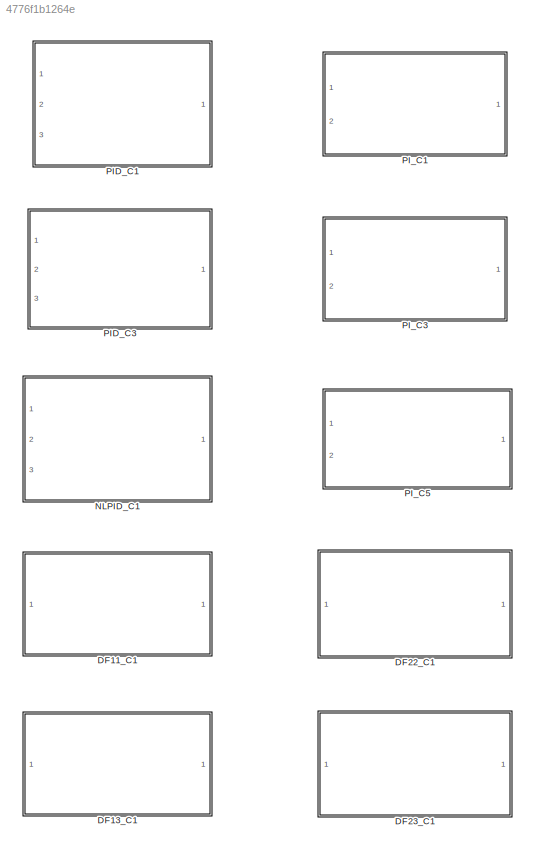
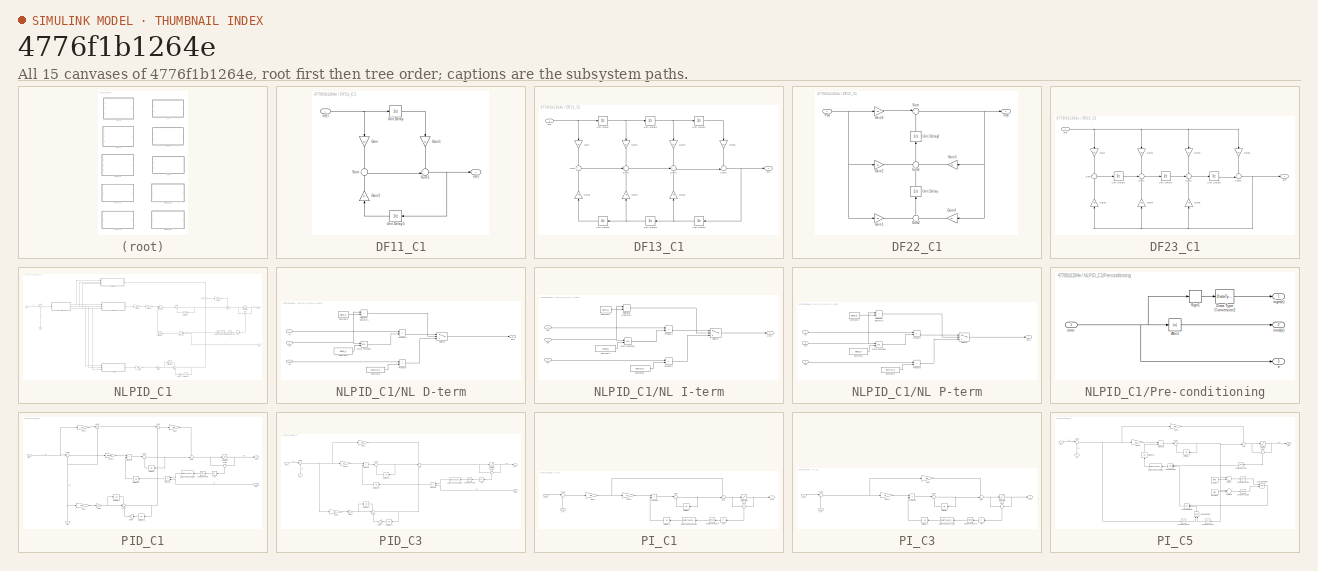
[diagram: thumbnail index - all 15 canvases of the model, root first then tree order]
MODEL slx_4776f1b1264e
KIND library
CONFIG AbsTol = auto
CONFIG EnableMultiTasking = off
CONFIG FixedStep = auto
CONFIG MaxStep = auto
CONFIG MinStep = auto
CONFIG RelTol = 1e-3
CONFIG SampleTimeConstraint = Unconstrained
CONFIG Solver = VariableStepAuto
CONFIG SolverName = VariableStepAuto
CONFIG StartTime = 0.0
CONFIG StopTime = 10.0
BLOCK [SubSystem] DF11_C1
  Ports = [1, 1]
  RequestExecContextInheritance = off
  ShowPortLabels = SignalName
  SystemSampleTime = T
  TreatAsAtomicUnit = on
  Variant = off
BLOCK [Gain] DF11_C1/Gain
  Gain = b0
  OutDataTypeStr = Inherit: Inherit via internal rule
  ParamDataTypeStr = Inherit: Inherit via internal rule
  SaturateOnIntegerOverflow = off
BLOCK [Gain] DF11_C1/Gain1
  Gain = b1
  OutDataTypeStr = Inherit: Inherit via internal rule
  ParamDataTypeStr = Inherit: Inherit via internal rule
  SaturateOnIntegerOverflow = off
BLOCK [Gain] DF11_C1/Gain2
  Gain = a1
  OutDataTypeStr = Inherit: Inherit via internal rule
  ParamDataTypeStr = Inherit: Inherit via internal rule
  SaturateOnIntegerOverflow = off
BLOCK [Sum] DF11_C1/Sum
  IconShape = round
  InputSameDT = off
  Inputs = +|-
  OutDataTypeStr = Inherit: Inherit via internal rule
  Ports = [2, 1]
  SaturateOnIntegerOverflow = off
BLOCK [Sum] DF11_C1/Sum1
  IconShape = round
  InputSameDT = off
  Inputs = ++|
  OutDataTypeStr = Inherit: Inherit via internal rule
  Ports = [2, 1]
  SaturateOnIntegerOverflow = off
BLOCK [UnitDelay] DF11_C1/Unit Delay
  InputProcessing = Elements as channels (sample based)
  SampleTime = -1
BLOCK [UnitDelay] DF11_C1/Unit Delay5
  InputProcessing = Elements as channels (sample based)
  SampleTime = -1
BLOCK [Inport] DF11_C1/e(k)
  IconDisplay = Port number
BLOCK [Outport] DF11_C1/u(k)
  IconDisplay = Port number
BLOCK [SubSystem] DF13_C1
  Ports = [1, 1]
  RequestExecContextInheritance = off
  TreatAsAtomicUnit = on
  Variant = off
BLOCK [Gain] DF13_C1/Gain
  Gain = b0
  OutDataTypeStr = Inherit: Inherit via internal rule
  ParamDataTypeStr = Inherit: Inherit via internal rule
  SaturateOnIntegerOverflow = off
BLOCK [Gain] DF13_C1/Gain1
  Gain = b1
  OutDataTypeStr = Inherit: Inherit via internal rule
  ParamDataTypeStr = Inherit: Inherit via internal rule
  SaturateOnIntegerOverflow = off
BLOCK [Gain] DF13_C1/Gain2
  Gain = b2
  OutDataTypeStr = Inherit: Inherit via internal rule
  ParamDataTypeStr = Inherit: Inherit via internal rule
  SaturateOnIntegerOverflow = off
BLOCK [Gain] DF13_C1/Gain3
  Gain = -a3
  OutDataTypeStr = Inherit: Inherit via internal rule
  ParamDataTypeStr = Inherit: Inherit via internal rule
  SaturateOnIntegerOverflow = off
BLOCK [Gain] DF13_C1/Gain4
  Gain = -a2
  OutDataTypeStr = Inherit: Inherit via internal rule
  ParamDataTypeStr = Inherit: Inherit via internal rule
  SaturateOnIntegerOverflow = off
BLOCK [Gain] DF13_C1/Gain5
  Gain = -a1
  OutDataTypeStr = Inherit: Inherit via internal rule
  ParamDataTypeStr = Inherit: Inherit via internal rule
  SaturateOnIntegerOverflow = off
BLOCK [Gain] DF13_C1/Gain6
  Gain = b3
  OutDataTypeStr = Inherit: Inherit via internal rule
  ParamDataTypeStr = Inherit: Inherit via internal rule
  SaturateOnIntegerOverflow = off
BLOCK [Sum] DF13_C1/Sum
  IconShape = round
  InputSameDT = off
  Inputs = +|+
  OutDataTypeStr = Inherit: Inherit via internal rule
  Ports = [2, 1]
  SaturateOnIntegerOverflow = off
BLOCK [Sum] DF13_C1/Sum1
  IconShape = round
  InputSameDT = off
  Inputs = +++
  OutDataTypeStr = Inherit: Inherit via internal rule
  Ports = [3, 1]
  SaturateOnIntegerOverflow = off
BLOCK [Sum] DF13_C1/Sum2
  IconShape = round
  InputSameDT = off
  Inputs = +++
  OutDataTypeStr = Inherit: Inherit via internal rule
  Ports = [3, 1]
  SaturateOnIntegerOverflow = off
BLOCK [Sum] DF13_C1/Sum3
  IconShape = round
  InputSameDT = off
  Inputs = ++|
  OutDataTypeStr = Inherit: Inherit via internal rule
  Ports = [2, 1]
  SaturateOnIntegerOverflow = off
BLOCK [UnitDelay] DF13_C1/Unit Delay
  InputProcessing = Elements as channels (sample based)
  SampleTime = -1
BLOCK [UnitDelay] DF13_C1/Unit Delay1
  InputProcessing = Elements as channels (sample based)
  SampleTime = -1
BLOCK [UnitDelay] DF13_C1/Unit Delay2
  InputProcessing = Elements as channels (sample based)
  SampleTime = -1
BLOCK [UnitDelay] DF13_C1/Unit Delay3
  InputProcessing = Elements as channels (sample based)
  SampleTime = -1
BLOCK [UnitDelay] DF13_C1/Unit Delay4
  InputProcessing = Elements as channels (sample based)
  SampleTime = -1
BLOCK [UnitDelay] DF13_C1/Unit Delay5
  InputProcessing = Elements as channels (sample based)
  SampleTime = -1
BLOCK [Inport] DF13_C1/e(k)
  IconDisplay = Port number
BLOCK [Outport] DF13_C1/u(k) 
  IconDisplay = Port number
BLOCK [SubSystem] DF22_C1
  Ports = [1, 1]
  RequestExecContextInheritance = off
  ShowPortLabels = SignalName
  SystemSampleTime = T
  TreatAsAtomicUnit = on
  Variant = off
BLOCK [Gain] DF22_C1/Gain1
  Gain = b2
  OutDataTypeStr = Inherit: Inherit via internal rule
  ParamDataTypeStr = Inherit: Inherit via internal rule
  SaturateOnIntegerOverflow = off
BLOCK [Gain] DF22_C1/Gain2
  Gain = b1
  OutDataTypeStr = Inherit: Inherit via internal rule
  ParamDataTypeStr = Inherit: Inherit via internal rule
  SaturateOnIntegerOverflow = off
BLOCK [Gain] DF22_C1/Gain4
  Gain = a2
  OutDataTypeStr = Inherit: Inherit via internal rule
  ParamDataTypeStr = Inherit: Inherit via internal rule
  SaturateOnIntegerOverflow = off
BLOCK [Gain] DF22_C1/Gain5
  Gain = a1
  OutDataTypeStr = Inherit: Inherit via internal rule
  ParamDataTypeStr = Inherit: Inherit via internal rule
  SaturateOnIntegerOverflow = off
BLOCK [Gain] DF22_C1/Gain6
  Gain = b0
  OutDataTypeStr = Inherit: Inherit via internal rule
  ParamDataTypeStr = Inherit: Inherit via internal rule
  SaturateOnIntegerOverflow = off
BLOCK [Sum] DF22_C1/Sum
  IconShape = round
  InputSameDT = off
  Inputs = |++
  OutDataTypeStr = Inherit: Inherit via internal rule
  Ports = [2, 1]
  SaturateOnIntegerOverflow = off
BLOCK [Sum] DF22_C1/Sum1
  IconShape = round
  InputSameDT = off
  Inputs = ++-
  OutDataTypeStr = Inherit: Inherit via internal rule
  Ports = [3, 1]
  SaturateOnIntegerOverflow = off
BLOCK [Sum] DF22_C1/Sum2
  IconShape = round
  InputSameDT = off
  Inputs = +|-
  OutDataTypeStr = Inherit: Inherit via internal rule
  Ports = [2, 1]
  SaturateOnIntegerOverflow = off
BLOCK [UnitDelay] DF22_C1/Unit Delay
  InputProcessing = Elements as channels (sample based)
  SampleTime = -1
BLOCK [UnitDelay] DF22_C1/Unit Delay2
  InputProcessing = Elements as channels (sample based)
  SampleTime = -1
BLOCK [Inport] DF22_C1/e(k)
  IconDisplay = Port number
BLOCK [Outport] DF22_C1/u(k) 
  IconDisplay = Port number
BLOCK [SubSystem] DF23_C1
  Ports = [1, 1]
  RequestExecContextInheritance = off
  TreatAsAtomicUnit = on
  Variant = off
BLOCK [Gain] DF23_C1/Gain
  Gain = b3
  OutDataTypeStr = Inherit: Inherit via internal rule
  ParamDataTypeStr = Inherit: Inherit via internal rule
  SaturateOnIntegerOverflow = off
BLOCK [Gain] DF23_C1/Gain1
  Gain = b2
  OutDataTypeStr = Inherit: Inherit via internal rule
  ParamDataTypeStr = Inherit: Inherit via internal rule
  SaturateOnIntegerOverflow = off
BLOCK [Gain] DF23_C1/Gain2
  Gain = b1
  OutDataTypeStr = Inherit: Inherit via internal rule
  ParamDataTypeStr = Inherit: Inherit via internal rule
  SaturateOnIntegerOverflow = off
BLOCK [Gain] DF23_C1/Gain3
  Gain = -a3
  OutDataTypeStr = Inherit: Inherit via internal rule
  ParamDataTypeStr = Inherit: Inherit via internal rule
  SaturateOnIntegerOverflow = off
BLOCK [Gain] DF23_C1/Gain4
  Gain = -a2
  OutDataTypeStr = Inherit: Inherit via internal rule
  ParamDataTypeStr = Inherit: Inherit via internal rule
  SaturateOnIntegerOverflow = off
BLOCK [Gain] DF23_C1/Gain5
  Gain = -a1
  OutDataTypeStr = Inherit: Inherit via internal rule
  ParamDataTypeStr = Inherit: Inherit via internal rule
  SaturateOnIntegerOverflow = off
BLOCK [Gain] DF23_C1/Gain6
  Gain = b0
  OutDataTypeStr = Inherit: Inherit via internal rule
  ParamDataTypeStr = Inherit: Inherit via internal rule
  SaturateOnIntegerOverflow = off
BLOCK [Sum] DF23_C1/Sum
  IconShape = round
  InputSameDT = off
  Inputs = +|+
  OutDataTypeStr = Inherit: Inherit via internal rule
  Ports = [2, 1]
  SaturateOnIntegerOverflow = off
BLOCK [Sum] DF23_C1/Sum1
  IconShape = round
  InputSameDT = off
  Inputs = +++
  OutDataTypeStr = Inherit: Inherit via internal rule
  Ports = [3, 1]
  SaturateOnIntegerOverflow = off
BLOCK [Sum] DF23_C1/Sum2
  IconShape = round
  InputSameDT = off
  Inputs = +++
  OutDataTypeStr = Inherit: Inherit via internal rule
  Ports = [3, 1]
  SaturateOnIntegerOverflow = off
BLOCK [Sum] DF23_C1/Sum3
  IconShape = round
  InputSameDT = off
  Inputs = ++|
  OutDataTypeStr = Inherit: Inherit via internal rule
  Ports = [2, 1]
  SaturateOnIntegerOverflow = off
BLOCK [UnitDelay] DF23_C1/Unit Delay6
  InputProcessing = Elements as channels (sample based)
  SampleTime = -1
BLOCK [UnitDelay] DF23_C1/Unit Delay7
  InputProcessing = Elements as channels (sample based)
  SampleTime = -1
BLOCK [UnitDelay] DF23_C1/Unit Delay8
  InputProcessing = Elements as channels (sample based)
  SampleTime = -1
BLOCK [Inport] DF23_C1/e(k)
  IconDisplay = Port number
BLOCK [Outport] DF23_C1/u(k) 
  IconDisplay = Port number
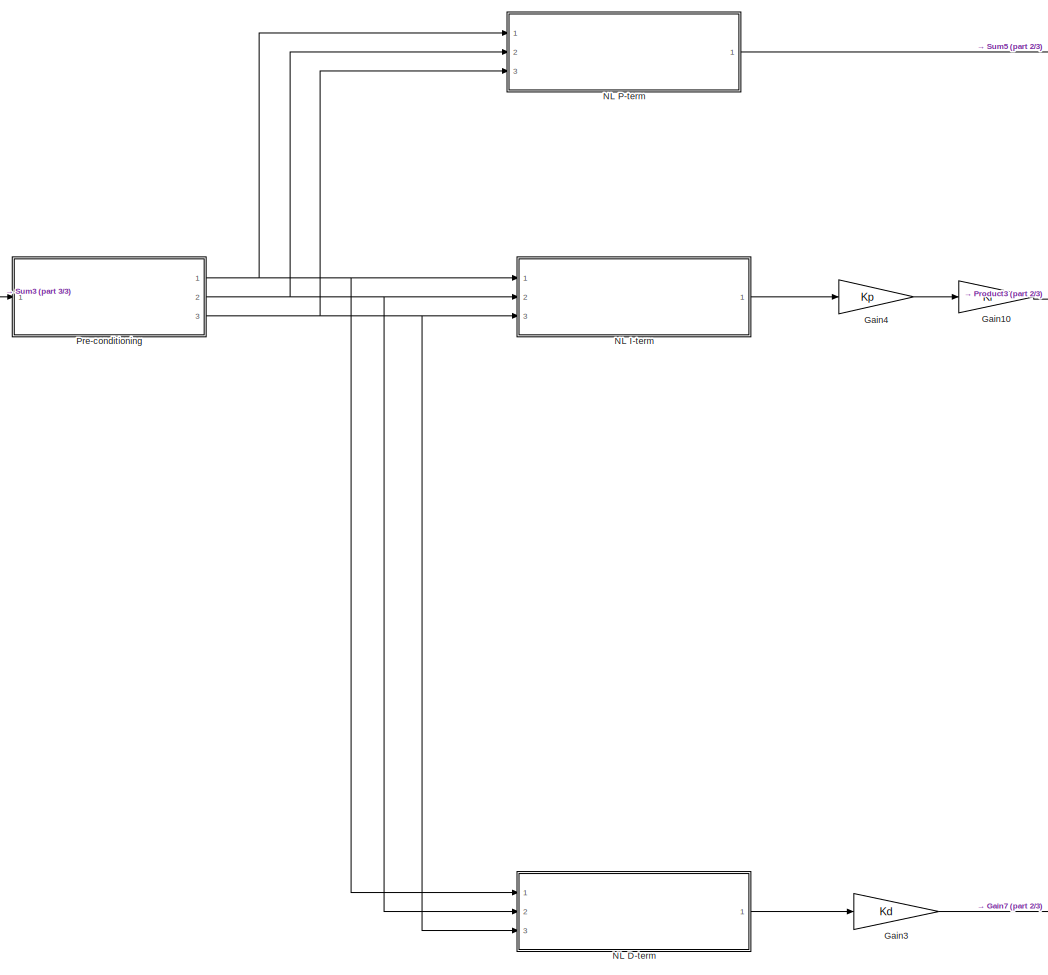
[diagram: NLPID_C1 - part 1/3, left side, full height]
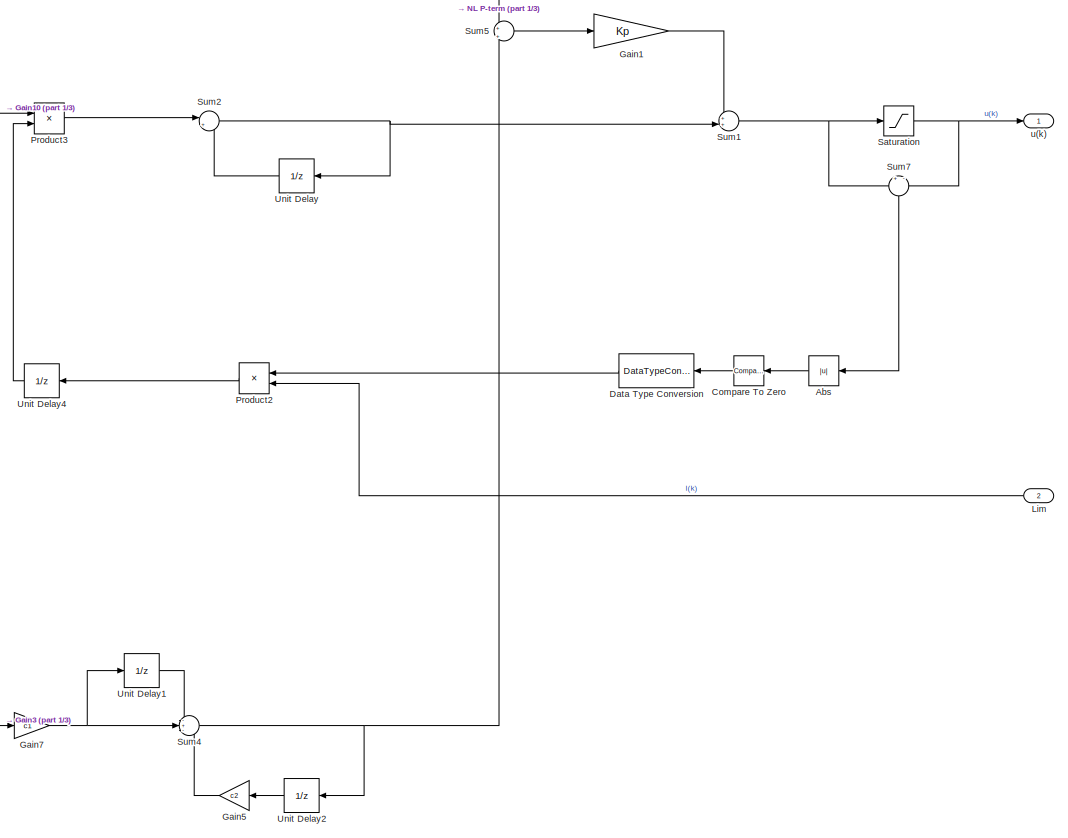
[diagram: NLPID_C1 - part 2/3, right side, full height]
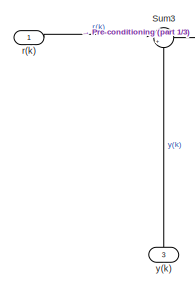
[diagram: NLPID_C1 - part 3/3, middle left region]
BLOCK [SubSystem] NLPID_C1
  Ports = [3, 1]
  RequestExecContextInheritance = off
  SystemSampleTime = T
  TreatAsAtomicUnit = on
  Variant = off
BLOCK [Abs] NLPID_C1/Abs
  SaturateOnIntegerOverflow = off
BLOCK [Reference] NLPID_C1/Compare To Zero  REF=simulink/Logic and Bit
Operations/Compare
To Zero
  Ports = [1, 1]
  SourceBlock = simulink/Logic and Bit\nOperations/Compare\nTo Zero
  SourceProductBaseCode = SL
  SourceProductName = Simulink
  SourceType = Compare To Zero
BLOCK [DataTypeConversion] NLPID_C1/Data Type Conversion
  OutDataTypeStr = single
  RndMeth = Floor
  SaturateOnIntegerOverflow = off
BLOCK [Gain] NLPID_C1/Gain1
  Gain = Kp
  OutDataTypeStr = Inherit: Inherit via internal rule
  ParamDataTypeStr = Inherit: Inherit via internal rule
  SaturateOnIntegerOverflow = off
BLOCK [Gain] NLPID_C1/Gain10
  Gain = Ki
  OutDataTypeStr = Inherit: Inherit via internal rule
  ParamDataTypeStr = Inherit: Inherit via internal rule
  SaturateOnIntegerOverflow = off
BLOCK [Gain] NLPID_C1/Gain3
  Gain = Kd
  OutDataTypeStr = Inherit: Inherit via internal rule
  ParamDataTypeStr = Inherit: Inherit via internal rule
  SaturateOnIntegerOverflow = off
BLOCK [Gain] NLPID_C1/Gain4
  Gain = Kp
  OutDataTypeStr = Inherit: Inherit via internal rule
  ParamDataTypeStr = Inherit: Inherit via internal rule
  SaturateOnIntegerOverflow = off
BLOCK [Gain] NLPID_C1/Gain5
  Gain = c2
  LockScale = on
  OutDataTypeStr = single
  ParamDataTypeStr = single
  SaturateOnIntegerOverflow = off
BLOCK [Gain] NLPID_C1/Gain7
  Gain = c1
  OutDataTypeStr = Inherit: Inherit via internal rule
  ParamDataTypeStr = Inherit: Inherit via internal rule
  SaturateOnIntegerOverflow = off
BLOCK [Inport] NLPID_C1/Lim
  IconDisplay = Signal name
  LockScale = on
  OutDataTypeStr = single
  Port = 2
  SampleTime = T
  SignalType = real
  VarSizeSig = No
BLOCK [SubSystem] NLPID_C1/NL D-term
  Ports = [3, 1]
  RequestExecContextInheritance = off
  Variant = off
BLOCK [Constant] NLPID_C1/NL D-term/Constant1
  OutDataTypeStr = single
  SampleTime = T
  Value = alpha_d
BLOCK [Constant] NLPID_C1/NL D-term/Constant5
  OutDataTypeStr = single
  SampleTime = T
  Value = delta_d
BLOCK [Constant] NLPID_C1/NL D-term/Constant6
  OutDataTypeStr = single
  SampleTime = T
  Value = gamma_d
BLOCK [Inport] NLPID_C1/NL D-term/In1
  IconDisplay = Port number
BLOCK [Inport] NLPID_C1/NL D-term/In2
  IconDisplay = Port number
  Port = 2
BLOCK [Inport] NLPID_C1/NL D-term/In3
  IconDisplay = Port number
  Port = 3
BLOCK [Math] NLPID_C1/NL D-term/Math Function1
  Operator = pow
  OutputSignalType = real
  Ports = [2, 1]
BLOCK [Outport] NLPID_C1/NL D-term/Out1
  IconDisplay = Port number
BLOCK [Product] NLPID_C1/NL D-term/Product1
  InputSameDT = off
  LockScale = on
  OutDataTypeStr = single
  Ports = [2, 1]
  RndMeth = Floor
  SaturateOnIntegerOverflow = off
BLOCK [Product] NLPID_C1/NL D-term/Product5
  InputSameDT = off
  LockScale = on
  OutDataTypeStr = single
  Ports = [2, 1]
  RndMeth = Floor
  SaturateOnIntegerOverflow = off
BLOCK [RelationalOperator] NLPID_C1/NL D-term/Relational Operator1
  Operator = >
  OutDataTypeStr = boolean
  Ports = [2, 1]
BLOCK [Switch] NLPID_C1/NL D-term/Switch1
  Criteria = u2 > Threshold
  InputSameDT = off
  SaturateOnIntegerOverflow = off
BLOCK [SubSystem] NLPID_C1/NL I-term
  Ports = [3, 1]
  RequestExecContextInheritance = off
  Variant = off
BLOCK [Constant] NLPID_C1/NL I-term/Constant1
  LockScale = on
  OutDataTypeStr = single
  SampleTime = T
  Value = alpha_i
BLOCK [Constant] NLPID_C1/NL I-term/Constant5
  LockScale = on
  OutDataTypeStr = single
  SampleTime = T
  Value = delta_i
BLOCK [Constant] NLPID_C1/NL I-term/Constant6
  LockScale = on
  OutDataTypeStr = single
  SampleTime = T
  Value = gamma_i
BLOCK [Inport] NLPID_C1/NL I-term/In1
  IconDisplay = Port number
BLOCK [Inport] NLPID_C1/NL I-term/In2
  IconDisplay = Port number
  Port = 2
BLOCK [Inport] NLPID_C1/NL I-term/In3
  IconDisplay = Port number
  Port = 3
BLOCK [Math] NLPID_C1/NL I-term/Math Function1
  Operator = pow
  OutputSignalType = real
  Ports = [2, 1]
BLOCK [Outport] NLPID_C1/NL I-term/Out1
  IconDisplay = Port number
BLOCK [Product] NLPID_C1/NL I-term/Product1
  LockScale = on
  OutDataTypeStr = single
  Ports = [2, 1]
  RndMeth = Floor
  SaturateOnIntegerOverflow = off
BLOCK [Product] NLPID_C1/NL I-term/Product5
  LockScale = on
  OutDataTypeStr = single
  Ports = [2, 1]
  RndMeth = Floor
  SaturateOnIntegerOverflow = off
BLOCK [RelationalOperator] NLPID_C1/NL I-term/Relational Operator1
  Operator = >
  OutDataTypeStr = boolean
  Ports = [2, 1]
BLOCK [Switch] NLPID_C1/NL I-term/Switch1
  Criteria = u2 > Threshold
  InputSameDT = off
  SaturateOnIntegerOverflow = off
BLOCK [SubSystem] NLPID_C1/NL P-term
  Ports = [3, 1]
  RequestExecContextInheritance = off
  Variant = off
BLOCK [Constant] NLPID_C1/NL P-term/Constant1
  LockScale = on
  OutDataTypeStr = single
  SampleTime = T
  Value = alpha_p
BLOCK [Constant] NLPID_C1/NL P-term/Constant5
  LockScale = on
  OutDataTypeStr = single
  SampleTime = T
  Value = delta_p
BLOCK [Constant] NLPID_C1/NL P-term/Constant6
  LockScale = on
  OutDataTypeStr = single
  SampleTime = T
  Value = gamma_p
BLOCK [Inport] NLPID_C1/NL P-term/In1
  IconDisplay = Port number
BLOCK [Inport] NLPID_C1/NL P-term/In2
  IconDisplay = Port number
  Port = 2
BLOCK [Inport] NLPID_C1/NL P-term/In3
  IconDisplay = Port number
  Port = 3
BLOCK [Math] NLPID_C1/NL P-term/Math Function1
  Operator = pow
  OutputSignalType = real
  Ports = [2, 1]
BLOCK [Outport] NLPID_C1/NL P-term/Out1
  IconDisplay = Port number
  LockScale = on
BLOCK [Product] NLPID_C1/NL P-term/Product1
  LockScale = on
  OutDataTypeStr = single
  Ports = [2, 1]
  RndMeth = Floor
  SaturateOnIntegerOverflow = off
BLOCK [Product] NLPID_C1/NL P-term/Product5
  LockScale = on
  OutDataTypeStr = single
  Ports = [2, 1]
  RndMeth = Floor
  SaturateOnIntegerOverflow = off
BLOCK [RelationalOperator] NLPID_C1/NL P-term/Relational Operator1
  Operator = >
  OutDataTypeStr = boolean
  Ports = [2, 1]
BLOCK [Switch] NLPID_C1/NL P-term/Switch1
  Criteria = u2 > Threshold
  LockScale = on
  OutDataTypeStr = single
  SaturateOnIntegerOverflow = off
BLOCK [SubSystem] NLPID_C1/Pre-conditioning
  Ports = [1, 3]
  RequestExecContextInheritance = off
  Variant = off
BLOCK [Abs] NLPID_C1/Pre-conditioning/Abs1
  OutDataTypeStr = single
  SaturateOnIntegerOverflow = off
BLOCK [DataTypeConversion] NLPID_C1/Pre-conditioning/Data Type Conversion2
  OutDataTypeStr = single
  RndMeth = Floor
  SaturateOnIntegerOverflow = off
BLOCK [Signum] NLPID_C1/Pre-conditioning/Sign1
BLOCK [Outport] NLPID_C1/Pre-conditioning/e
  IconDisplay = Port number
  Port = 3
BLOCK [Inport] NLPID_C1/Pre-conditioning/error
  IconDisplay = Port number
BLOCK [Outport] NLPID_C1/Pre-conditioning/mod(e)
  IconDisplay = Port number
  Port = 2
BLOCK [Outport] NLPID_C1/Pre-conditioning/sign(e)
  IconDisplay = Port number
BLOCK [Product] NLPID_C1/Product2
  InputSameDT = off
  OutDataTypeStr = Inherit: Inherit via internal rule
  Ports = [2, 1]
  SaturateOnIntegerOverflow = off
BLOCK [Product] NLPID_C1/Product3
  InputSameDT = off
  OutDataTypeStr = Inherit: Inherit via internal rule
  Ports = [2, 1]
  SaturateOnIntegerOverflow = off
BLOCK [Saturate] NLPID_C1/Saturation
  InputPortMap = u0
  LowerLimit = Umin
  Ports = [1, 1]
  UpperLimit = Umax
BLOCK [Sum] NLPID_C1/Sum1
  IconShape = round
  InputSameDT = off
  Inputs = ++|
  OutDataTypeStr = Inherit: Inherit via internal rule
  Ports = [2, 1]
  SaturateOnIntegerOverflow = off
BLOCK [Sum] NLPID_C1/Sum2
  IconShape = round
  InputSameDT = off
  Inputs = |++
  OutDataTypeStr = Inherit: Inherit via internal rule
  Ports = [2, 1]
  SaturateOnIntegerOverflow = off
BLOCK [Sum] NLPID_C1/Sum3
  AccumDataTypeStr = single
  IconShape = round
  Inputs = |+-
  LockScale = on
  OutDataTypeStr = single
  Ports = [2, 1]
  SaturateOnIntegerOverflow = off
BLOCK [Sum] NLPID_C1/Sum4
  IconShape = round
  InputSameDT = off
  Inputs = -+-
  OutDataTypeStr = Inherit: Inherit via internal rule
  Ports = [3, 1]
  SaturateOnIntegerOverflow = off
BLOCK [Sum] NLPID_C1/Sum5
  IconShape = round
  InputSameDT = off
  Inputs = +|+
  OutDataTypeStr = Inherit: Inherit via internal rule
  Ports = [2, 1]
  SaturateOnIntegerOverflow = off
BLOCK [Sum] NLPID_C1/Sum7
  IconShape = round
  InputSameDT = off
  Inputs = +|-
  OutDataTypeStr = Inherit: Inherit via internal rule
  Ports = [2, 1]
  SaturateOnIntegerOverflow = off
BLOCK [UnitDelay] NLPID_C1/Unit Delay
  SampleTime = -1
BLOCK [UnitDelay] NLPID_C1/Unit Delay1
  SampleTime = -1
BLOCK [UnitDelay] NLPID_C1/Unit Delay2
  SampleTime = -1
BLOCK [UnitDelay] NLPID_C1/Unit Delay4
  InputProcessing = Elements as channels (sample based)
  SampleTime = -1
BLOCK [Inport] NLPID_C1/r(k)
  IconDisplay = Signal name
  OutDataTypeStr = single
  SampleTime = T
  SignalType = real
  VarSizeSig = No
BLOCK [Outport] NLPID_C1/u(k)
  IconDisplay = Signal name
BLOCK [Inport] NLPID_C1/y(k)
  IconDisplay = Signal name
  LockScale = on
  OutDataTypeStr = single
  Port = 3
  SampleTime = T
  SignalType = real
  VarSizeSig = No
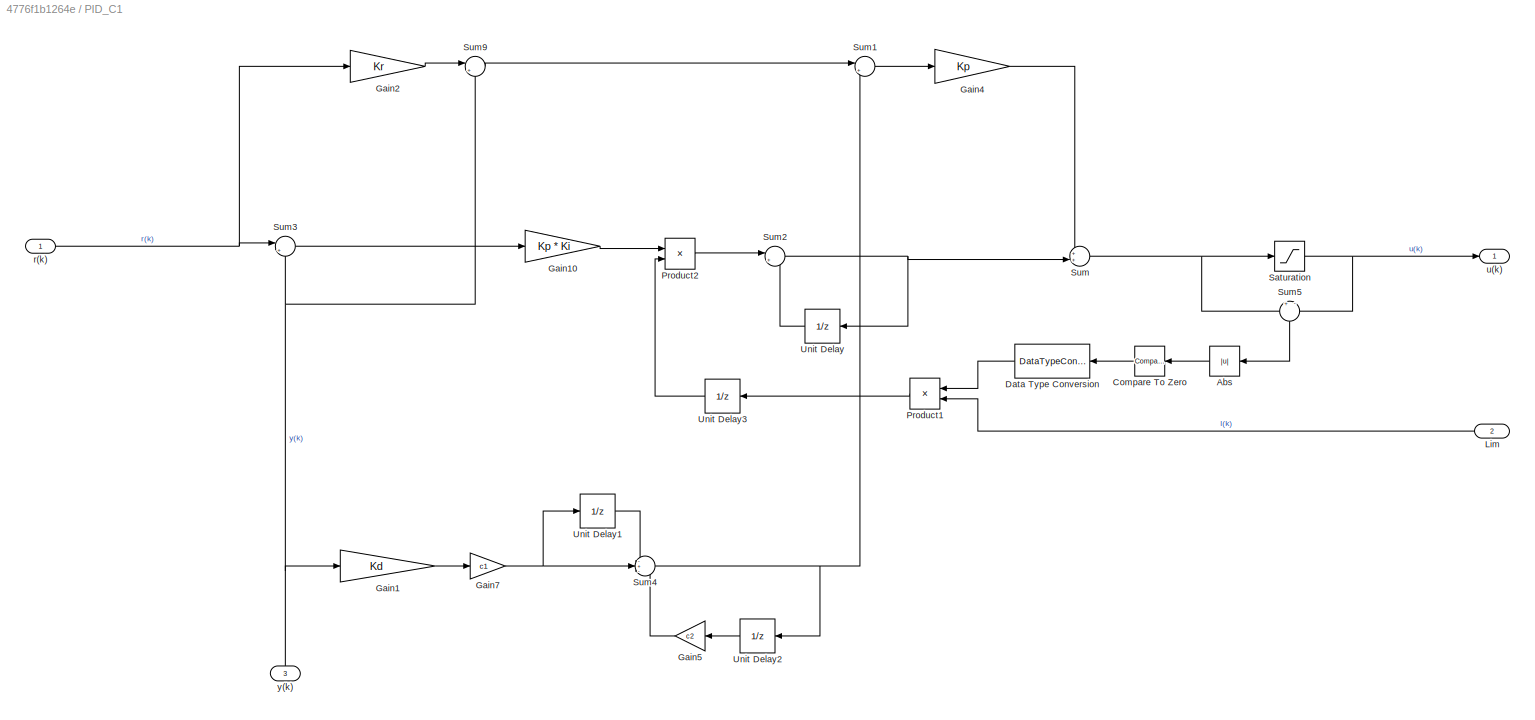
BLOCK [SubSystem] PID_C1
  Ports = [3, 1]
  RequestExecContextInheritance = off
  ShowPortLabels = SignalName
  SystemSampleTime = T
  TreatAsAtomicUnit = on
  Variant = off
BLOCK [Abs] PID_C1/Abs
  SaturateOnIntegerOverflow = off
BLOCK [Reference] PID_C1/Compare To Zero  REF=simulink/Logic and Bit
Operations/Compare
To Zero
  Ports = [1, 1]
  SourceBlock = simulink/Logic and Bit\nOperations/Compare\nTo Zero
  SourceProductBaseCode = SL
  SourceProductName = Simulink
  SourceType = Compare To Zero
BLOCK [DataTypeConversion] PID_C1/Data Type Conversion
  OutDataTypeStr = single
  RndMeth = Floor
  SaturateOnIntegerOverflow = off
BLOCK [Gain] PID_C1/Gain1
  Gain = Kd
  OutDataTypeStr = Inherit: Inherit via internal rule
  ParamDataTypeStr = Inherit: Inherit via internal rule
  SaturateOnIntegerOverflow = off
BLOCK [Gain] PID_C1/Gain10
  Gain = Kp * Ki
  OutDataTypeStr = Inherit: Inherit via internal rule
  ParamDataTypeStr = Inherit: Inherit via internal rule
  SaturateOnIntegerOverflow = off
BLOCK [Gain] PID_C1/Gain2
  Gain = Kr
  OutDataTypeStr = Inherit: Inherit via internal rule
  ParamDataTypeStr = Inherit: Inherit via internal rule
  SaturateOnIntegerOverflow = off
BLOCK [Gain] PID_C1/Gain4
  Gain = Kp
  OutDataTypeStr = Inherit: Inherit via internal rule
  ParamDataTypeStr = Inherit: Inherit via internal rule
  SaturateOnIntegerOverflow = off
BLOCK [Gain] PID_C1/Gain5
  Gain = c2
  OutDataTypeStr = Inherit: Inherit via internal rule
  ParamDataTypeStr = Inherit: Inherit via internal rule
  SaturateOnIntegerOverflow = off
BLOCK [Gain] PID_C1/Gain7
  Gain = c1
  OutDataTypeStr = Inherit: Inherit via internal rule
  ParamDataTypeStr = Inherit: Inherit via internal rule
  SaturateOnIntegerOverflow = off
BLOCK [Inport] PID_C1/Lim
  IconDisplay = Signal name
  LockScale = on
  OutDataTypeStr = single
  Port = 2
  SampleTime = T
  SignalType = real
  VarSizeSig = No
BLOCK [Product] PID_C1/Product1
  InputSameDT = off
  OutDataTypeStr = Inherit: Inherit via internal rule
  Ports = [2, 1]
  SaturateOnIntegerOverflow = off
BLOCK [Product] PID_C1/Product2
  InputSameDT = off
  OutDataTypeStr = Inherit: Inherit via internal rule
  Ports = [2, 1]
  SaturateOnIntegerOverflow = off
BLOCK [Saturate] PID_C1/Saturation
  InputPortMap = u0
  LowerLimit = Umin
  Ports = [1, 1]
  UpperLimit = Umax
BLOCK [Sum] PID_C1/Sum
  IconShape = round
  InputSameDT = off
  Inputs = ++|
  OutDataTypeStr = Inherit: Inherit via internal rule
  Ports = [2, 1]
  SaturateOnIntegerOverflow = off
BLOCK [Sum] PID_C1/Sum1
  IconShape = round
  InputSameDT = off
  Inputs = |+-
  OutDataTypeStr = Inherit: Inherit via internal rule
  Ports = [2, 1]
  SaturateOnIntegerOverflow = off
BLOCK [Sum] PID_C1/Sum2
  IconShape = round
  InputSameDT = off
  Inputs = |++
  OutDataTypeStr = Inherit: Inherit via internal rule
  Ports = [2, 1]
  SaturateOnIntegerOverflow = off
BLOCK [Sum] PID_C1/Sum3
  IconShape = round
  InputSameDT = off
  Inputs = |+-
  OutDataTypeStr = Inherit: Inherit via internal rule
  Ports = [2, 1]
  SaturateOnIntegerOverflow = off
BLOCK [Sum] PID_C1/Sum4
  IconShape = round
  InputSameDT = off
  Inputs = -+-
  OutDataTypeStr = Inherit: Inherit via internal rule
  Ports = [3, 1]
  SaturateOnIntegerOverflow = off
BLOCK [Sum] PID_C1/Sum5
  IconShape = round
  InputSameDT = off
  Inputs = +|-
  OutDataTypeStr = Inherit: Inherit via internal rule
  Ports = [2, 1]
  SaturateOnIntegerOverflow = off
BLOCK [Sum] PID_C1/Sum9
  IconShape = round
  InputSameDT = off
  Inputs = |+-
  OutDataTypeStr = Inherit: Inherit via internal rule
  Ports = [2, 1]
  SaturateOnIntegerOverflow = off
BLOCK [UnitDelay] PID_C1/Unit Delay
  SampleTime = -1
BLOCK [UnitDelay] PID_C1/Unit Delay1
  SampleTime = -1
BLOCK [UnitDelay] PID_C1/Unit Delay2
  SampleTime = -1
BLOCK [UnitDelay] PID_C1/Unit Delay3
  InputProcessing = Elements as channels (sample based)
  SampleTime = -1
BLOCK [Inport] PID_C1/r(k)
  IconDisplay = Signal name
  LockScale = on
  OutDataTypeStr = single
  SampleTime = T
  SignalType = real
  VarSizeSig = No
BLOCK [Outport] PID_C1/u(k)
  IconDisplay = Signal name
BLOCK [Inport] PID_C1/y(k)
  IconDisplay = Signal name
  OutDataTypeStr = single
  Port = 3
  SampleTime = T
  SignalType = real
  VarSizeSig = No
BLOCK [SubSystem] PID_C3
  Ports = [3, 1]
  RequestExecContextInheritance = off
  ShowPortLabels = SignalName
  SystemSampleTime = T
  TreatAsAtomicUnit = on
  Variant = off
BLOCK [Abs] PID_C3/Abs
  SaturateOnIntegerOverflow = off
BLOCK [Reference] PID_C3/Compare To Zero  REF=simulink/Logic and Bit
Operations/Compare
To Zero
  Ports = [1, 1]
  SourceBlock = simulink/Logic and Bit\nOperations/Compare\nTo Zero
  SourceProductBaseCode = SL
  SourceProductName = Simulink
  SourceType = Compare To Zero
BLOCK [DataTypeConversion] PID_C3/Data Type Conversion
  OutDataTypeStr = single
  RndMeth = Floor
  SaturateOnIntegerOverflow = off
BLOCK [Gain] PID_C3/Gain1
  Gain = Kd
  OutDataTypeStr = Inherit: Inherit via internal rule
  ParamDataTypeStr = Inherit: Inherit via internal rule
  SaturateOnIntegerOverflow = off
BLOCK [Gain] PID_C3/Gain10
  Gain = Ki
  OutDataTypeStr = Inherit: Inherit via internal rule
  ParamDataTypeStr = Inherit: Inherit via internal rule
  SaturateOnIntegerOverflow = off
BLOCK [Gain] PID_C3/Gain4
  Gain = Kp
  OutDataTypeStr = Inherit: Inherit via internal rule
  ParamDataTypeStr = Inherit: Inherit via internal rule
  SaturateOnIntegerOverflow = off
BLOCK [Gain] PID_C3/Gain5
  Gain = c2
  OutDataTypeStr = Inherit: Inherit via internal rule
  ParamDataTypeStr = Inherit: Inherit via internal rule
  SaturateOnIntegerOverflow = off
BLOCK [Gain] PID_C3/Gain7
  Gain = c1
  OutDataTypeStr = Inherit: Inherit via internal rule
  ParamDataTypeStr = Inherit: Inherit via internal rule
  SaturateOnIntegerOverflow = off
BLOCK [Inport] PID_C3/Lim
  IconDisplay = Signal name
  LockScale = on
  Port = 2
  SampleTime = T
  SignalType = real
  VarSizeSig = No
BLOCK [Product] PID_C3/Product1
  InputSameDT = off
  OutDataTypeStr = Inherit: Inherit via internal rule
  Ports = [2, 1]
  SaturateOnIntegerOverflow = off
BLOCK [Product] PID_C3/Product2
  InputSameDT = off
  OutDataTypeStr = Inherit: Inherit via internal rule
  Ports = [2, 1]
  SaturateOnIntegerOverflow = off
BLOCK [Saturate] PID_C3/Saturation
  InputPortMap = u0
  LowerLimit = Umin
  Ports = [1, 1]
  UpperLimit = Umax
BLOCK [Sum] PID_C3/Sum
  IconShape = round
  InputSameDT = off
  Inputs = +++
  OutDataTypeStr = Inherit: Inherit via internal rule
  Ports = [3, 1]
  SaturateOnIntegerOverflow = off
BLOCK [Sum] PID_C3/Sum3
  IconShape = round
  InputSameDT = off
  Inputs = |+-
  OutDataTypeStr = Inherit: Inherit via internal rule
  Ports = [2, 1]
  SaturateOnIntegerOverflow = off
BLOCK [Sum] PID_C3/Sum4
  IconShape = round
  InputSameDT = off
  Inputs = -+-
  OutDataTypeStr = Inherit: Inherit via internal rule
  Ports = [3, 1]
  SaturateOnIntegerOverflow = off
BLOCK [Sum] PID_C3/Sum5
  IconShape = round
  InputSameDT = off
  Inputs = |++
  OutDataTypeStr = Inherit: Inherit via internal rule
  Ports = [2, 1]
  SaturateOnIntegerOverflow = off
BLOCK [Sum] PID_C3/Sum6
  IconShape = round
  InputSameDT = off
  Inputs = +|-
  OutDataTypeStr = Inherit: Inherit via internal rule
  Ports = [2, 1]
  SaturateOnIntegerOverflow = off
BLOCK [UnitDelay] PID_C3/Unit Delay1
  SampleTime = -1
BLOCK [UnitDelay] PID_C3/Unit Delay2
  SampleTime = -1
BLOCK [UnitDelay] PID_C3/Unit Delay3
  SampleTime = -1
BLOCK [UnitDelay] PID_C3/Unit Delay4
  SampleTime = -1
BLOCK [Inport] PID_C3/r(k)
  IconDisplay = Signal name
  LockScale = on
  OutDataTypeStr = single
  SampleTime = T
  SignalType = real
  VarSizeSig = No
BLOCK [Outport] PID_C3/u(k)
  IconDisplay = Signal name
BLOCK [Inport] PID_C3/y(k)
  IconDisplay = Signal name
  LockScale = on
  OutDataTypeStr = single
  Port = 3
  SampleTime = T
  SignalType = real
  VarSizeSig = No
BLOCK [SubSystem] PI_C1
  Ports = [2, 1]
  RequestExecContextInheritance = off
  SystemSampleTime = T
  TreatAsAtomicUnit = on
  Variant = off
BLOCK [Abs] PI_C1/Abs
  SaturateOnIntegerOverflow = off
BLOCK [Reference] PI_C1/Compare To Zero  REF=simulink/Logic and Bit
Operations/Compare
To Zero
  Ports = [1, 1]
  SourceBlock = simulink/Logic and Bit\nOperations/Compare\nTo Zero
  SourceProductBaseCode = SL
  SourceProductName = Simulink
  SourceType = Compare To Zero
BLOCK [DataTypeConversion] PI_C1/Data Type Conversion
  OutDataTypeStr = single
  RndMeth = Floor
  SaturateOnIntegerOverflow = off
BLOCK [Gain] PI_C1/Gain10
  Gain = Ki
  OutDataTypeStr = Inherit: Inherit via internal rule
  ParamDataTypeStr = Inherit: Inherit via internal rule
  SaturateOnIntegerOverflow = off
BLOCK [Gain] PI_C1/Gain4
  Gain = Kp
  OutDataTypeStr = Inherit: Inherit via internal rule
  ParamDataTypeStr = Inherit: Inherit via internal rule
  SaturateOnIntegerOverflow = off
BLOCK [Product] PI_C1/Product2
  InputSameDT = off
  OutDataTypeStr = Inherit: Inherit via internal rule
  Ports = [2, 1]
  SaturateOnIntegerOverflow = off
BLOCK [Saturate] PI_C1/Saturation
  InputPortMap = u0
  LowerLimit = Umin
  Ports = [1, 1]
  UpperLimit = Umax
BLOCK [Sum] PI_C1/Sum
  IconShape = round
  InputSameDT = off
  Inputs = ++|
  OutDataTypeStr = Inherit: Inherit via internal rule
  Ports = [2, 1]
  SaturateOnIntegerOverflow = off
BLOCK [Sum] PI_C1/Sum2
  IconShape = round
  InputSameDT = off
  Inputs = |++
  OutDataTypeStr = Inherit: Inherit via internal rule
  Ports = [2, 1]
  SaturateOnIntegerOverflow = off
BLOCK [Sum] PI_C1/Sum3
  IconShape = round
  InputSameDT = off
  Inputs = |+-
  OutDataTypeStr = Inherit: Inherit via internal rule
  Ports = [2, 1]
  SaturateOnIntegerOverflow = off
BLOCK [Sum] PI_C1/Sum7
  IconShape = round
  InputSameDT = off
  Inputs = +|-
  OutDataTypeStr = Inherit: Inherit via internal rule
  Ports = [2, 1]
  SaturateOnIntegerOverflow = off
BLOCK [UnitDelay] PI_C1/Unit Delay
  SampleTime = -1
BLOCK [UnitDelay] PI_C1/Unit Delay1
  SampleTime = -1
BLOCK [Inport] PI_C1/r(k)
  IconDisplay = Port number
BLOCK [Outport] PI_C1/u(k)
  IconDisplay = Port number
BLOCK [Inport] PI_C1/y(k)
  IconDisplay = Port number
  Port = 2
BLOCK [SubSystem] PI_C3
  Ports = [2, 1]
  RequestExecContextInheritance = off
  SystemSampleTime = T
  TreatAsAtomicUnit = on
  Variant = off
BLOCK [Abs] PI_C3/Abs
  SaturateOnIntegerOverflow = off
BLOCK [Reference] PI_C3/Compare To Zero  REF=simulink/Logic and Bit
Operations/Compare
To Zero
  Ports = [1, 1]
  SourceBlock = simulink/Logic and Bit\nOperations/Compare\nTo Zero
  SourceProductBaseCode = SL
  SourceProductName = Simulink
  SourceType = Compare To Zero
BLOCK [DataTypeConversion] PI_C3/Data Type Conversion
  OutDataTypeStr = single
  RndMeth = Floor
  SaturateOnIntegerOverflow = off
BLOCK [Gain] PI_C3/Gain1
  Gain = Kp
  OutDataTypeStr = Inherit: Inherit via internal rule
  ParamDataTypeStr = Inherit: Inherit via internal rule
  SaturateOnIntegerOverflow = off
BLOCK [Gain] PI_C3/Gain10
  Gain = Ki
  OutDataTypeStr = Inherit: Inherit via internal rule
  ParamDataTypeStr = Inherit: Inherit via internal rule
  SaturateOnIntegerOverflow = off
BLOCK [Product] PI_C3/Product2
  InputSameDT = off
  OutDataTypeStr = Inherit: Inherit via internal rule
  Ports = [2, 1]
  SaturateOnIntegerOverflow = off
BLOCK [Saturate] PI_C3/Saturation
  InputPortMap = u0
  LowerLimit = Umin
  Ports = [1, 1]
  UpperLimit = Umax
BLOCK [Sum] PI_C3/Sum
  IconShape = round
  InputSameDT = off
  Inputs = ++|
  OutDataTypeStr = Inherit: Inherit via internal rule
  Ports = [2, 1]
  SaturateOnIntegerOverflow = off
BLOCK [Sum] PI_C3/Sum2
  IconShape = round
  InputSameDT = off
  Inputs = |++
  OutDataTypeStr = Inherit: Inherit via internal rule
  Ports = [2, 1]
  SaturateOnIntegerOverflow = off
BLOCK [Sum] PI_C3/Sum3
  IconShape = round
  InputSameDT = off
  Inputs = |+-
  OutDataTypeStr = Inherit: Inherit via internal rule
  Ports = [2, 1]
  SaturateOnIntegerOverflow = off
BLOCK [Sum] PI_C3/Sum7
  IconShape = round
  InputSameDT = off
  Inputs = +|-
  OutDataTypeStr = Inherit: Inherit via internal rule
  Ports = [2, 1]
  SaturateOnIntegerOverflow = off
BLOCK [UnitDelay] PI_C3/Unit Delay
  SampleTime = -1
BLOCK [UnitDelay] PI_C3/Unit Delay1
  SampleTime = -1
BLOCK [Inport] PI_C3/r(k)
  IconDisplay = Port number
BLOCK [Outport] PI_C3/u(k)
  IconDisplay = Port number
BLOCK [Inport] PI_C3/y(k)
  IconDisplay = Port number
  Port = 2
BLOCK [SubSystem] PI_C5
  Ports = [2, 1]
  RequestExecContextInheritance = off
  SystemSampleTime = T
  TreatAsAtomicUnit = on
  Variant = off
BLOCK [Reference] PI_C5/Compare To Zero  REF=simulink/Logic and Bit
Operations/Compare
To Zero
  Ports = [1, 1]
  SourceBlock = simulink/Logic and Bit\nOperations/Compare\nTo Zero
  SourceProductBaseCode = SL
  SourceProductName = Simulink
  SourceType = Compare To Zero
BLOCK [Reference] PI_C5/Compare To Zero1  REF=simulink/Logic and Bit
Operations/Compare
To Zero
  Ports = [1, 1]
  SourceBlock = simulink/Logic and Bit\nOperations/Compare\nTo Zero
  SourceProductBaseCode = SL
  SourceProductName = Simulink
  SourceType = Compare To Zero
BLOCK [Reference] PI_C5/Compare To Zero2  REF=simulink/Logic and Bit
Operations/Compare
To Zero
  Ports = [1, 1]
  SourceBlock = simulink/Logic and Bit\nOperations/Compare\nTo Zero
  SourceProductBaseCode = SL
  SourceProductName = Simulink
  SourceType = Compare To Zero
BLOCK [Reference] PI_C5/Compare To Zero4  REF=simulink/Logic and Bit
Operations/Compare
To Zero
  Ports = [1, 1]
  SourceBlock = simulink/Logic and Bit\nOperations/Compare\nTo Zero
  SourceProductBaseCode = SL
  SourceProductName = Simulink
  SourceType = Compare To Zero
BLOCK [Reference] PI_C5/Compare To Zero5  REF=simulink/Logic and Bit
Operations/Compare
To Zero
  Ports = [1, 1]
  SourceBlock = simulink/Logic and Bit\nOperations/Compare\nTo Zero
  SourceProductBaseCode = SL
  SourceProductName = Simulink
  SourceType = Compare To Zero
BLOCK [Constant] PI_C5/Constant
  SampleTime = T
  Value = Imax
BLOCK [Constant] PI_C5/Constant1
  SampleTime = T
  Value = Imin
BLOCK [DataTypeConversion] PI_C5/Data Type Conversion
  OutDataTypeStr = single
  RndMeth = Floor
  SaturateOnIntegerOverflow = off
BLOCK [Gain] PI_C5/Gain10
  Gain = Ki
  OutDataTypeStr = Inherit: Inherit via internal rule
  ParamDataTypeStr = Inherit: Inherit via internal rule
  SaturateOnIntegerOverflow = off
BLOCK [Gain] PI_C5/Gain4
  Gain = Kp
  OutDataTypeStr = Inherit: Inherit via internal rule
  ParamDataTypeStr = Inherit: Inherit via internal rule
  SaturateOnIntegerOverflow = off
BLOCK [Logic] PI_C5/Logical Operator
  AllPortsSameDT = off
  Operator = XOR
  OutDataTypeStr = boolean
  Ports = [2, 1]
BLOCK [Logic] PI_C5/Logical Operator1
  AllPortsSameDT = off
  OutDataTypeStr = boolean
  Ports = [2, 1]
BLOCK [Logic] PI_C5/Logical Operator2
  AllPortsSameDT = off
  Operator = OR
  OutDataTypeStr = boolean
  Ports = [2, 1]
BLOCK [Logic] PI_C5/Logical Operator3
  AllPortsSameDT = off
  Operator = NOR
  OutDataTypeStr = boolean
  Ports = [2, 1]
BLOCK [Product] PI_C5/Product2
  InputSameDT = off
  OutDataTypeStr = Inherit: Inherit via internal rule
  Ports = [2, 1]
  SaturateOnIntegerOverflow = off
BLOCK [Saturate] PI_C5/Saturation
  InputPortMap = u0
  LowerLimit = Umin
  Ports = [1, 1]
  UpperLimit = Umax
BLOCK [Sum] PI_C5/Subtract
  InputSameDT = off
  Inputs = +-
  OutDataTypeStr = Inherit: Inherit via internal rule
  Ports = [2, 1]
  SaturateOnIntegerOverflow = off
BLOCK [Sum] PI_C5/Subtract1
  InputSameDT = off
  Inputs = +-
  OutDataTypeStr = Inherit: Inherit via internal rule
  Ports = [2, 1]
  SaturateOnIntegerOverflow = off
BLOCK [Sum] PI_C5/Sum
  IconShape = round
  InputSameDT = off
  Inputs = ++|
  OutDataTypeStr = Inherit: Inherit via internal rule
  Ports = [2, 1]
  SaturateOnIntegerOverflow = off
BLOCK [Sum] PI_C5/Sum2
  IconShape = round
  InputSameDT = off
  Inputs = |++
  OutDataTypeStr = Inherit: Inherit via internal rule
  Ports = [2, 1]
  SaturateOnIntegerOverflow = off
BLOCK [Sum] PI_C5/Sum3
  IconShape = round
  InputSameDT = off
  Inputs = |+-
  OutDataTypeStr = Inherit: Inherit via internal rule
  Ports = [2, 1]
  SaturateOnIntegerOverflow = off
BLOCK [Sum] PI_C5/Sum7
  IconShape = round
  InputSameDT = off
  Inputs = +|-
  OutDataTypeStr = Inherit: Inherit via internal rule
  Ports = [2, 1]
  SaturateOnIntegerOverflow = off
BLOCK [UnitDelay] PI_C5/Unit Delay
  SampleTime = -1
BLOCK [UnitDelay] PI_C5/Unit Delay1
  SampleTime = -1
BLOCK [Inport] PI_C5/r(k)
  IconDisplay = Signal name
BLOCK [Outport] PI_C5/u(k)
  IconDisplay = Signal name
BLOCK [Inport] PI_C5/y(k)
  IconDisplay = Signal name
  Port = 2
LINE DF11_C1/Gain1:1 -> DF11_C1/Sum1:1
LINE DF11_C1/Gain2:1 -> DF11_C1/Sum:2
LINE DF11_C1/Gain:1 -> DF11_C1/Sum:1
NET DF11_C1/Sum1:1 -> DF11_C1/Unit Delay5:1, DF11_C1/u(k):1
LINE DF11_C1/Sum:1 -> DF11_C1/Sum1:2
LINE DF11_C1/Unit Delay5:1 -> DF11_C1/Gain2:1
LINE DF11_C1/Unit Delay:1 -> DF11_C1/Gain1:1
NET DF11_C1/e(k):1 -> DF11_C1/Gain:1, DF11_C1/Unit Delay:1
LINE DF13_C1/Gain1:1 -> DF13_C1/Sum1:1
LINE DF13_C1/Gain2:1 -> DF13_C1/Sum2:1
LINE DF13_C1/Gain3:1 -> DF13_C1/Sum:2
LINE DF13_C1/Gain4:1 -> DF13_C1/Sum1:3
LINE DF13_C1/Gain5:1 -> DF13_C1/Sum2:3
LINE DF13_C1/Gain6:1 -> DF13_C1/Sum3:1
LINE DF13_C1/Gain:1 -> DF13_C1/Sum:1
LINE DF13_C1/Sum1:1 -> DF13_C1/Sum2:2
LINE DF13_C1/Sum2:1 -> DF13_C1/Sum3:2
NET DF13_C1/Sum3:1 -> DF13_C1/Unit Delay4:1, DF13_C1/u(k) :1
LINE DF13_C1/Sum:1 -> DF13_C1/Sum1:2
LINE DF13_C1/Unit Delay1:1 -> DF13_C1/Gain6:1
NET DF13_C1/Unit Delay2:1 -> DF13_C1/Gain2:1, DF13_C1/Unit Delay1:1
NET DF13_C1/Unit Delay3:1 -> DF13_C1/Gain4:1, DF13_C1/Unit Delay5:1
NET DF13_C1/Unit Delay4:1 -> DF13_C1/Gain5:1, DF13_C1/Unit Delay3:1
LINE DF13_C1/Unit Delay5:1 -> DF13_C1/Gain3:1
NET DF13_C1/Unit Delay:1 -> DF13_C1/Gain1:1, DF13_C1/Unit Delay2:1
NET DF13_C1/e(k):1 -> DF13_C1/Gain:1, DF13_C1/Unit Delay:1
LINE DF22_C1/Gain1:1 -> DF22_C1/Sum2:1
LINE DF22_C1/Gain2:1 -> DF22_C1/Sum1:1
LINE DF22_C1/Gain4:1 -> DF22_C1/Sum2:2
LINE DF22_C1/Gain5:1 -> DF22_C1/Sum1:3
LINE DF22_C1/Gain6:1 -> DF22_C1/Sum:1
LINE DF22_C1/Sum1:1 -> DF22_C1/Unit Delay2:1
LINE DF22_C1/Sum2:1 -> DF22_C1/Unit Delay:1
NET DF22_C1/Sum:1 -> DF22_C1/Gain4:1, DF22_C1/Gain5:1, DF22_C1/u(k) :1
LINE DF22_C1/Unit Delay2:1 -> DF22_C1/Sum:2
LINE DF22_C1/Unit Delay:1 -> DF22_C1/Sum1:2
NET DF22_C1/e(k):1 -> DF22_C1/Gain1:1, DF22_C1/Gain2:1, DF22_C1/Gain6:1
LINE DF23_C1/Gain1:1 -> DF23_C1/Sum1:1
LINE DF23_C1/Gain2:1 -> DF23_C1/Sum2:1
LINE DF23_C1/Gain3:1 -> DF23_C1/Sum:2
LINE DF23_C1/Gain4:1 -> DF23_C1/Sum1:3
LINE DF23_C1/Gain5:1 -> DF23_C1/Sum2:3
LINE DF23_C1/Gain6:1 -> DF23_C1/Sum3:1
LINE DF23_C1/Gain:1 -> DF23_C1/Sum:1
LINE DF23_C1/Sum1:1 -> DF23_C1/Unit Delay7:1
LINE DF23_C1/Sum2:1 -> DF23_C1/Unit Delay8:1
NET DF23_C1/Sum3:1 -> DF23_C1/Gain3:1, DF23_C1/Gain4:1, DF23_C1/Gain5:1, DF23_C1/u(k) :1
LINE DF23_C1/Sum:1 -> DF23_C1/Unit Delay6:1
LINE DF23_C1/Unit Delay6:1 -> DF23_C1/Sum1:2
LINE DF23_C1/Unit Delay7:1 -> DF23_C1/Sum2:2
LINE DF23_C1/Unit Delay8:1 -> DF23_C1/Sum3:2
NET DF23_C1/e(k):1 -> DF23_C1/Gain1:1, DF23_C1/Gain2:1, DF23_C1/Gain6:1, DF23_C1/Gain:1
LINE NLPID_C1/Abs:1 -> NLPID_C1/Compare To Zero:1
LINE NLPID_C1/Compare To Zero:1 -> NLPID_C1/Data Type Conversion:1
LINE NLPID_C1/Data Type Conversion:1 -> NLPID_C1/Product2:1
LINE NLPID_C1/Gain10:1 -> NLPID_C1/Product3:1
LINE NLPID_C1/Gain1:1 -> NLPID_C1/Sum1:1
LINE NLPID_C1/Gain3:1 -> NLPID_C1/Gain7:1
LINE NLPID_C1/Gain4:1 -> NLPID_C1/Gain10:1
LINE NLPID_C1/Gain5:1 -> NLPID_C1/Sum4:3
NET NLPID_C1/Gain7:1 -> NLPID_C1/Sum4:2, NLPID_C1/Unit Delay1:1
LINE NLPID_C1/Lim:1 -> NLPID_C1/Product2:2
LINE NLPID_C1/NL D-term/Constant1:1 -> NLPID_C1/NL D-term/Math Function1:2
LINE NLPID_C1/NL D-term/Constant5:1 -> NLPID_C1/NL D-term/Relational Operator1:2
LINE NLPID_C1/NL D-term/Constant6:1 -> NLPID_C1/NL D-term/Product5:2
LINE NLPID_C1/NL D-term/In1:1 -> NLPID_C1/NL D-term/Product1:1
NET NLPID_C1/NL D-term/In2:1 -> NLPID_C1/NL D-term/Math Function1:1, NLPID_C1/NL D-term/Relational Operator1:1
LINE NLPID_C1/NL D-term/In3:1 -> NLPID_C1/NL D-term/Product5:1
LINE NLPID_C1/NL D-term/Math Function1:1 -> NLPID_C1/NL D-term/Product1:2
LINE NLPID_C1/NL D-term/Product1:1 -> NLPID_C1/NL D-term/Switch1:1
LINE NLPID_C1/NL D-term/Product5:1 -> NLPID_C1/NL D-term/Switch1:3
LINE NLPID_C1/NL D-term/Relational Operator1:1 -> NLPID_C1/NL D-term/Switch1:2
LINE NLPID_C1/NL D-term/Switch1:1 -> NLPID_C1/NL D-term/Out1:1
LINE NLPID_C1/NL D-term:1 -> NLPID_C1/Gain3:1
LINE NLPID_C1/NL I-term/Constant1:1 -> NLPID_C1/NL I-term/Math Function1:2
LINE NLPID_C1/NL I-term/Constant5:1 -> NLPID_C1/NL I-term/Relational Operator1:2
LINE NLPID_C1/NL I-term/Constant6:1 -> NLPID_C1/NL I-term/Product5:2
LINE NLPID_C1/NL I-term/In1:1 -> NLPID_C1/NL I-term/Product1:1
NET NLPID_C1/NL I-term/In2:1 -> NLPID_C1/NL I-term/Math Function1:1, NLPID_C1/NL I-term/Relational Operator1:1
LINE NLPID_C1/NL I-term/In3:1 -> NLPID_C1/NL I-term/Product5:1
LINE NLPID_C1/NL I-term/Math Function1:1 -> NLPID_C1/NL I-term/Product1:2
LINE NLPID_C1/NL I-term/Product1:1 -> NLPID_C1/NL I-term/Switch1:1
LINE NLPID_C1/NL I-term/Product5:1 -> NLPID_C1/NL I-term/Switch1:3
LINE NLPID_C1/NL I-term/Relational Operator1:1 -> NLPID_C1/NL I-term/Switch1:2
LINE NLPID_C1/NL I-term/Switch1:1 -> NLPID_C1/NL I-term/Out1:1
LINE NLPID_C1/NL I-term:1 -> NLPID_C1/Gain4:1
LINE NLPID_C1/NL P-term/Constant1:1 -> NLPID_C1/NL P-term/Math Function1:2
LINE NLPID_C1/NL P-term/Constant5:1 -> NLPID_C1/NL P-term/Relational Operator1:2
LINE NLPID_C1/NL P-term/Constant6:1 -> NLPID_C1/NL P-term/Product5:2
LINE NLPID_C1/NL P-term/In1:1 -> NLPID_C1/NL P-term/Product1:1
NET NLPID_C1/NL P-term/In2:1 -> NLPID_C1/NL P-term/Math Function1:1, NLPID_C1/NL P-term/Relational Operator1:1
LINE NLPID_C1/NL P-term/In3:1 -> NLPID_C1/NL P-term/Product5:1
LINE NLPID_C1/NL P-term/Math Function1:1 -> NLPID_C1/NL P-term/Product1:2
LINE NLPID_C1/NL P-term/Product1:1 -> NLPID_C1/NL P-term/Switch1:1
LINE NLPID_C1/NL P-term/Product5:1 -> NLPID_C1/NL P-term/Switch1:3
LINE NLPID_C1/NL P-term/Relational Operator1:1 -> NLPID_C1/NL P-term/Switch1:2
LINE NLPID_C1/NL P-term/Switch1:1 -> NLPID_C1/NL P-term/Out1:1
LINE NLPID_C1/NL P-term:1 -> NLPID_C1/Sum5:1
LINE NLPID_C1/Pre-conditioning/Abs1:1 -> NLPID_C1/Pre-conditioning/mod(e):1
LINE NLPID_C1/Pre-conditioning/Data Type Conversion2:1 -> NLPID_C1/Pre-conditioning/sign(e):1
LINE NLPID_C1/Pre-conditioning/Sign1:1 -> NLPID_C1/Pre-conditioning/Data Type Conversion2:1
NET NLPID_C1/Pre-conditioning/error:1 -> NLPID_C1/Pre-conditioning/Abs1:1, NLPID_C1/Pre-conditioning/Sign1:1, NLPID_C1/Pre-conditioning/e:1
NET NLPID_C1/Pre-conditioning:1 -> NLPID_C1/NL D-term:1, NLPID_C1/NL I-term:1, NLPID_C1/NL P-term:1
NET NLPID_C1/Pre-conditioning:2 -> NLPID_C1/NL D-term:2, NLPID_C1/NL I-term:2, NLPID_C1/NL P-term:2
NET NLPID_C1/Pre-conditioning:3 -> NLPID_C1/NL D-term:3, NLPID_C1/NL I-term:3, NLPID_C1/NL P-term:3
LINE NLPID_C1/Product2:1 -> NLPID_C1/Unit Delay4:1
LINE NLPID_C1/Product3:1 -> NLPID_C1/Sum2:1
NET NLPID_C1/Saturation:1 -> NLPID_C1/Sum7:2, NLPID_C1/u(k):1
NET NLPID_C1/Sum1:1 -> NLPID_C1/Saturation:1, NLPID_C1/Sum7:1
NET NLPID_C1/Sum2:1 -> NLPID_C1/Sum1:2, NLPID_C1/Unit Delay:1
LINE NLPID_C1/Sum3:1 -> NLPID_C1/Pre-conditioning:1
NET NLPID_C1/Sum4:1 -> NLPID_C1/Sum5:2, NLPID_C1/Unit Delay2:1
LINE NLPID_C1/Sum5:1 -> NLPID_C1/Gain1:1
LINE NLPID_C1/Sum7:1 -> NLPID_C1/Abs:1
LINE NLPID_C1/Unit Delay1:1 -> NLPID_C1/Sum4:1
LINE NLPID_C1/Unit Delay2:1 -> NLPID_C1/Gain5:1
LINE NLPID_C1/Unit Delay4:1 -> NLPID_C1/Product3:2
LINE NLPID_C1/Unit Delay:1 -> NLPID_C1/Sum2:2
LINE NLPID_C1/r(k):1 -> NLPID_C1/Sum3:1
LINE NLPID_C1/y(k):1 -> NLPID_C1/Sum3:2
LINE PID_C1/Abs:1 -> PID_C1/Compare To Zero:1
LINE PID_C1/Compare To Zero:1 -> PID_C1/Data Type Conversion:1
LINE PID_C1/Data Type Conversion:1 -> PID_C1/Product1:1
LINE PID_C1/Gain10:1 -> PID_C1/Product2:1
LINE PID_C1/Gain1:1 -> PID_C1/Gain7:1
LINE PID_C1/Gain2:1 -> PID_C1/Sum9:1
LINE PID_C1/Gain4:1 -> PID_C1/Sum:1
LINE PID_C1/Gain5:1 -> PID_C1/Sum4:3
NET PID_C1/Gain7:1 -> PID_C1/Sum4:2, PID_C1/Unit Delay1:1
LINE PID_C1/Lim:1 -> PID_C1/Product1:2
LINE PID_C1/Product1:1 -> PID_C1/Unit Delay3:1
LINE PID_C1/Product2:1 -> PID_C1/Sum2:1
NET PID_C1/Saturation:1 -> PID_C1/Sum5:2, PID_C1/u(k):1
LINE PID_C1/Sum1:1 -> PID_C1/Gain4:1
NET PID_C1/Sum2:1 -> PID_C1/Sum:2, PID_C1/Unit Delay:1
LINE PID_C1/Sum3:1 -> PID_C1/Gain10:1
NET PID_C1/Sum4:1 -> PID_C1/Sum1:2, PID_C1/Unit Delay2:1
LINE PID_C1/Sum5:1 -> PID_C1/Abs:1
LINE PID_C1/Sum9:1 -> PID_C1/Sum1:1
NET PID_C1/Sum:1 -> PID_C1/Saturation:1, PID_C1/Sum5:1
LINE PID_C1/Unit Delay1:1 -> PID_C1/Sum4:1
LINE PID_C1/Unit Delay2:1 -> PID_C1/Gain5:1
LINE PID_C1/Unit Delay3:1 -> PID_C1/Product2:2
LINE PID_C1/Unit Delay:1 -> PID_C1/Sum2:2
NET PID_C1/r(k):1 -> PID_C1/Gain2:1, PID_C1/Sum3:1
NET PID_C1/y(k):1 -> PID_C1/Gain1:1, PID_C1/Sum3:2, PID_C1/Sum9:2
LINE PID_C3/Abs:1 -> PID_C3/Compare To Zero:1
LINE PID_C3/Compare To Zero:1 -> PID_C3/Data Type Conversion:1
LINE PID_C3/Data Type Conversion:1 -> PID_C3/Product2:1
LINE PID_C3/Gain10:1 -> PID_C3/Product1:1
LINE PID_C3/Gain1:1 -> PID_C3/Gain7:1
LINE PID_C3/Gain4:1 -> PID_C3/Sum:1
LINE PID_C3/Gain5:1 -> PID_C3/Sum4:3
NET PID_C3/Gain7:1 -> PID_C3/Sum4:2, PID_C3/Unit Delay1:1
LINE PID_C3/Lim:1 -> PID_C3/Product2:2
LINE PID_C3/Product1:1 -> PID_C3/Sum5:1
LINE PID_C3/Product2:1 -> PID_C3/Unit Delay4:1
NET PID_C3/Saturation:1 -> PID_C3/Sum6:2, PID_C3/u(k):1
NET PID_C3/Sum3:1 -> PID_C3/Gain10:1, PID_C3/Gain1:1, PID_C3/Gain4:1
NET PID_C3/Sum4:1 -> PID_C3/Sum:3, PID_C3/Unit Delay2:1
NET PID_C3/Sum5:1 -> PID_C3/Sum:2, PID_C3/Unit Delay3:1
LINE PID_C3/Sum6:1 -> PID_C3/Abs:1
NET PID_C3/Sum:1 -> PID_C3/Saturation:1, PID_C3/Sum6:1
LINE PID_C3/Unit Delay1:1 -> PID_C3/Sum4:1
LINE PID_C3/Unit Delay2:1 -> PID_C3/Gain5:1
LINE PID_C3/Unit Delay3:1 -> PID_C3/Sum5:2
LINE PID_C3/Unit Delay4:1 -> PID_C3/Product1:2
LINE PID_C3/r(k):1 -> PID_C3/Sum3:1
LINE PID_C3/y(k):1 -> PID_C3/Sum3:2
LINE PI_C1/Abs:1 -> PI_C1/Compare To Zero:1
LINE PI_C1/Compare To Zero:1 -> PI_C1/Data Type Conversion:1
LINE PI_C1/Data Type Conversion:1 -> PI_C1/Unit Delay1:1
LINE PI_C1/Gain10:1 -> PI_C1/Product2:1
NET PI_C1/Gain4:1 -> PI_C1/Gain10:1, PI_C1/Sum:1
LINE PI_C1/Product2:1 -> PI_C1/Sum2:1
NET PI_C1/Saturation:1 -> PI_C1/Sum7:2, PI_C1/u(k):1
NET PI_C1/Sum2:1 -> PI_C1/Sum:2, PI_C1/Unit Delay:1
LINE PI_C1/Sum3:1 -> PI_C1/Gain4:1
LINE PI_C1/Sum7:1 -> PI_C1/Abs:1
NET PI_C1/Sum:1 -> PI_C1/Saturation:1, PI_C1/Sum7:1
LINE PI_C1/Unit Delay1:1 -> PI_C1/Product2:2
LINE PI_C1/Unit Delay:1 -> PI_C1/Sum2:2
LINE PI_C1/r(k):1 -> PI_C1/Sum3:1
LINE PI_C1/y(k):1 -> PI_C1/Sum3:2
LINE PI_C3/Abs:1 -> PI_C3/Compare To Zero:1
LINE PI_C3/Compare To Zero:1 -> PI_C3/Data Type Conversion:1
LINE PI_C3/Data Type Conversion:1 -> PI_C3/Unit Delay1:1
LINE PI_C3/Gain10:1 -> PI_C3/Product2:1
LINE PI_C3/Gain1:1 -> PI_C3/Sum:1
LINE PI_C3/Product2:1 -> PI_C3/Sum2:1
NET PI_C3/Saturation:1 -> PI_C3/Sum7:2, PI_C3/u(k):1
NET PI_C3/Sum2:1 -> PI_C3/Sum:2, PI_C3/Unit Delay:1
NET PI_C3/Sum3:1 -> PI_C3/Gain10:1, PI_C3/Gain1:1
LINE PI_C3/Sum7:1 -> PI_C3/Abs:1
NET PI_C3/Sum:1 -> PI_C3/Saturation:1, PI_C3/Sum7:1
LINE PI_C3/Unit Delay1:1 -> PI_C3/Product2:2
LINE PI_C3/Unit Delay:1 -> PI_C3/Sum2:2
LINE PI_C3/r(k):1 -> PI_C3/Sum3:1
LINE PI_C3/y(k):1 -> PI_C3/Sum3:2
LINE PI_C5/Compare To Zero1:1 -> PI_C5/Logical Operator:2
LINE PI_C5/Compare To Zero2:1 -> PI_C5/Logical Operator:1
LINE PI_C5/Compare To Zero4:1 -> PI_C5/Logical Operator3:1
LINE PI_C5/Compare To Zero5:1 -> PI_C5/Logical Operator3:2
LINE PI_C5/Compare To Zero:1 -> PI_C5/Logical Operator1:1
LINE PI_C5/Constant1:1 -> PI_C5/Subtract1:2
LINE PI_C5/Constant:1 -> PI_C5/Subtract:2
LINE PI_C5/Data Type Conversion:1 -> PI_C5/Unit Delay1:1
LINE PI_C5/Gain10:1 -> PI_C5/Product2:1
LINE PI_C5/Gain4:1 -> PI_C5/Sum:1
LINE PI_C5/Logical Operator1:1 -> PI_C5/Data Type Conversion:1
LINE PI_C5/Logical Operator2:1 -> PI_C5/Logical Operator1:2
LINE PI_C5/Logical Operator3:1 -> PI_C5/Logical Operator2:1
LINE PI_C5/Logical Operator:1 -> PI_C5/Logical Operator2:2
LINE PI_C5/Product2:1 -> PI_C5/Sum2:1
NET PI_C5/Saturation:1 -> PI_C5/Sum7:2, PI_C5/u(k):1
LINE PI_C5/Subtract1:1 -> PI_C5/Compare To Zero5:1
LINE PI_C5/Subtract:1 -> PI_C5/Compare To Zero4:1
NET PI_C5/Sum2:1 -> PI_C5/Compare To Zero1:1, PI_C5/Subtract1:1, PI_C5/Subtract:1, PI_C5/Sum:2, PI_C5/Unit Delay:1
NET PI_C5/Sum3:1 -> PI_C5/Compare To Zero2:1, PI_C5/Gain10:1, PI_C5/Gain4:1
LINE PI_C5/Sum7:1 -> PI_C5/Compare To Zero:1
NET PI_C5/Sum:1 -> PI_C5/Saturation:1, PI_C5/Sum7:1
LINE PI_C5/Unit Delay1:1 -> PI_C5/Product2:2
LINE PI_C5/Unit Delay:1 -> PI_C5/Sum2:2
LINE PI_C5/r(k):1 -> PI_C5/Sum3:1
LINE PI_C5/y(k):1 -> PI_C5/Sum3:2
note: NET lines group one-source signal fan-out (src -> all destinations, sorted); 1:1 wires keep LINE
